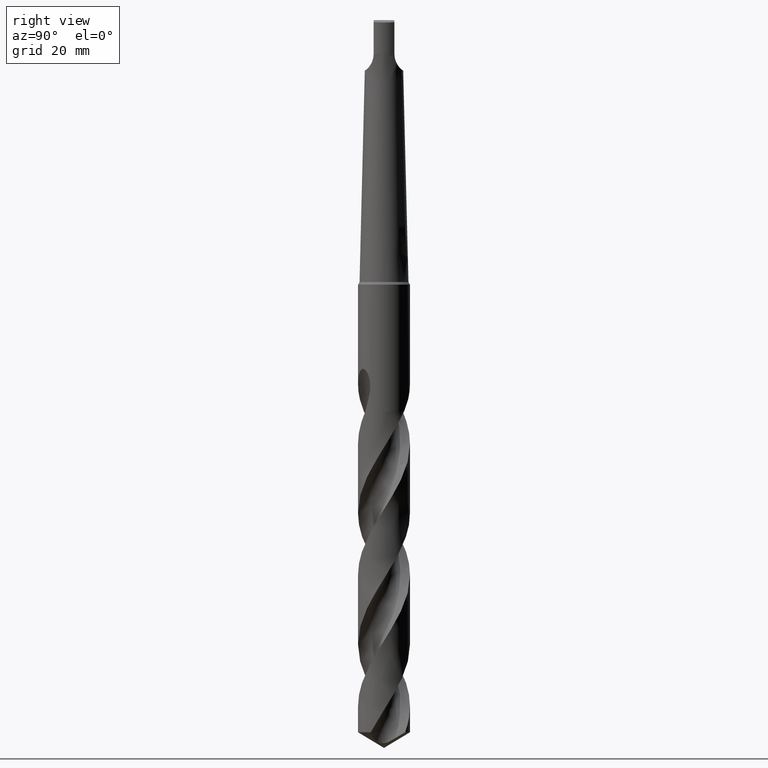
[diagram: clean part render]
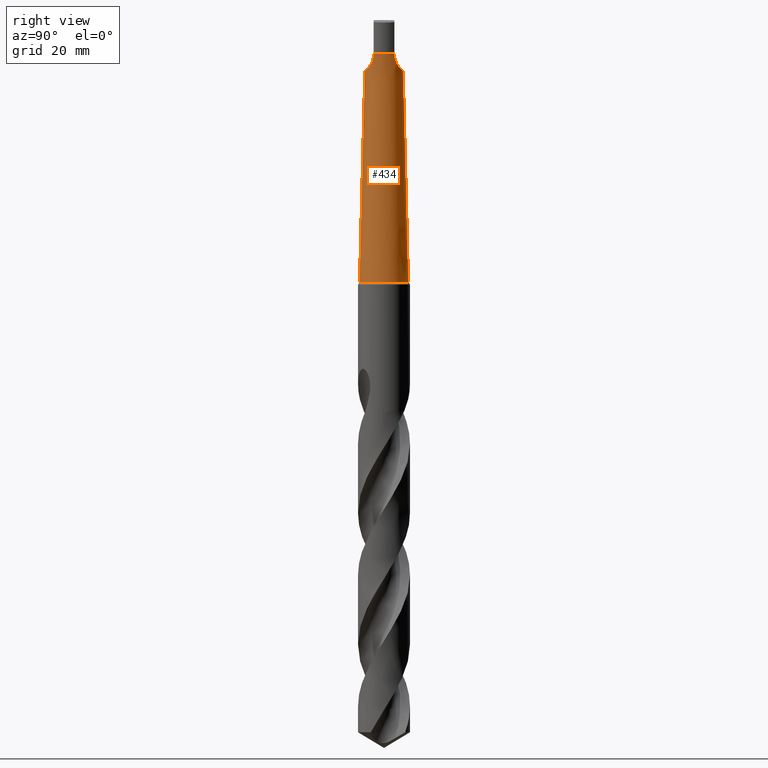
[diagram: same view with one face highlighted and labeled with its STEP entity id]
A machine part, right view. The second image highlights one B-rep face of the part: STEP entity #434.
In plain terms, the highlighted conical surface has half-angle 1.429 deg.
Its self-contained STEP definition (entity closure, byte-faithful):
#278=VERTEX_POINT('',#779);
#284=EDGE_CURVE('',#538,#594,#785,.T.);
#314=VERTEX_POINT('',#820);
#316=EDGE_CURVE('',#372,#608,#822,.T.);
#348=VERTEX_POINT('',#855);
#350=EDGE_CURVE('',#314,#348,#857,.T.);
#372=VERTEX_POINT('',#884);
#382=EDGE_CURVE('',#446,#746,#896,.T.);
#396=EDGE_CURVE('',#594,#458,#910,.T.);
#434=ADVANCED_FACE('',(#952,#953),#954,.T.);
#446=VERTEX_POINT('',#967);
#450=EDGE_CURVE('',#728,#446,#971,.T.);
#458=VERTEX_POINT('',#979);
#534=VERTEX_POINT('',#1064);
#538=VERTEX_POINT('',#1068);
#542=EDGE_CURVE('',#534,#314,#1072,.T.);
#566=EDGE_CURVE('',#348,#278,#1099,.T.);
#584=EDGE_CURVE('',#728,#278,#1118,.T.);
#594=VERTEX_POINT('',#1128);
#608=VERTEX_POINT('',#1143);
#626=EDGE_CURVE('',#534,#646,#1162,.T.);
#630=EDGE_CURVE('',#646,#372,#1167,.T.);
#646=VERTEX_POINT('',#1185);
#648=EDGE_CURVE('',#746,#608,#1187,.T.);
#726=EDGE_CURVE('',#458,#538,#1271,.T.);
#728=VERTEX_POINT('',#1273);
#746=VERTEX_POINT('',#1293);
#779=CARTESIAN_POINT('',(-7.30722611325813E-016,5.967,2.6331089351285));
#785=B_SPLINE_CURVE_WITH_KNOTS('',3,(#1475,#1476,#1477,#1478,#1479,#1480,#1481,#1482,#1483,#1484),.UNSPECIFIED.,.F.,.F.,(4,2,2,2,4),(3.10386765281075,3.41395529397561,3.72404293514048,4.03446955482045,4.34489617450043),.UNSPECIFIED.);
#820=CARTESIAN_POINT('',(0.29010312703583,5.97575209188588,2.00016710097719));
#822=LINE('',#2672,#2673);
#855=CARTESIAN_POINT('',(0.509929320479536,5.94517124127769,2.63310893512858));
#857=ELLIPSE('',#2732,18.3939231268992,6.01917473989601);
#884=CARTESIAN_POINT('',(7.49459088539295E-016,-6.12,-3.5));
#896=CIRCLE('',#2920,4.69804580152672);
#910=CIRCLE('',#2939,5.967);
#952=FACE_BOUND('',#3145,.T.);
#953=FACE_OUTER_BOUND('',#3146,.T.);
#954=CONICAL_SURFACE('',#3147,5.303,0.0249413918092599);
#967=CARTESIAN_POINT('',(3.91300835077602,2.59999999999999,53.5));
#971=B_SPLINE_CURVE_WITH_KNOTS('',3,(#3617,#3618,#3619,#3620,#3621,#3622,#3623,#3624,#3625,#3626,#3627,#3628,#3629,#3630,#3631,#3632,#3633,#3634,#3635,#3636,#3637,#3638,#3639,#3640,#3641,#3642,#3643,#3644,#3645,#3646,#3647,#3648,#3649,#3650,#3651,#3652,#3653,#3654,#3655,#3656,#3657,#3658,#3659,#3660,#3661,#3662),.UNSPECIFIED.,.F.,.F.,(4,2,2,2,2,2,2,2,2,2,2,2,2,2,2,2,2,2,2,2,2,2,4),(5.94745564972428,6.52836466216317,7.11627150966079,7.7041783571584,8.29208520465601,8.87999205215362,9.54139770725337,10.2028033623531,10.9539417241705,11.705080085988,12.4562184478054,13.2073568096228,13.9584951714402,14.7096335332576,15.460771895075,16.2119102568924,16.8733159119922,17.5347215670919,18.1226284145895,18.7105352620872,19.2984421095848,19.8863489570824,20.4672579695213),.UNSPECIFIED.);
#979=CARTESIAN_POINT('',(0.873560781758957,5.90270959480243,2.6331089351285));
#1064=CARTESIAN_POINT('',(-6.60045995059092E-016,5.98356786928868,1.96897463989665));
#1068=CARTESIAN_POINT('',(0.873560781758956,5.91259105037835,2.2412648208469));
#1072=B_SPLINE_CURVE_WITH_KNOTS('',3,(#4320,#4321,#4322,#4323,#4324,#4325,#4326,#4327,#4328,#4329,#4330,#4331,#4332,#4333,#4334,#4335),.UNSPECIFIED.,.F.,.F.,(4,2,2,2,2,2,2,4),(0.931799841544667,1.24239978872622,1.55272298523245,1.86304618173869,2.17336937824492,2.48369257475115,2.79378024306547,3.1038679113798),.UNSPECIFIED.);
#1099=CIRCLE('',#4391,5.967);
#1118=LINE('',#4495,#4496);
#1128=CARTESIAN_POINT('',(1.28415614419166,5.82718044999625,2.63310893859838));
#1143=CARTESIAN_POINT('',(3.0786963446816E-016,-4.80140978760588,49.3565844013553));
#1162=LINE('',#4866,#4867);
#1167=CIRCLE('',#4873,6.12);
#1185=CARTESIAN_POINT('',(0.0,6.12,-3.5));
#1187=B_SPLINE_CURVE_WITH_KNOTS('',3,(#5203,#5204,#5205,#5206,#5207,#5208,#5209,#5210,#5211,#5212,#5213,#5214,#5215,#5216,#5217,#5218,#5219,#5220,#5221,#5222,#5223,#5224,#5225,#5226,#5227,#5228,#5229,#5230,#5231,#5232,#5233,#5234,#5235,#5236,#5237,#5238,#5239,#5240,#5241,#5242,#5243,#5244,#5245,#5246,#5247,#5248),.UNSPECIFIED.,.F.,.F.,(4,2,2,2,2,2,2,2,2,2,2,2,2,2,2,2,2,2,2,2,2,2,4),(5.94745564972427,6.52836466216316,7.11627150966077,7.70417835715838,8.29208520465599,8.8799920521536,9.54139770725336,10.2028033623531,10.9539417241705,11.7050800859879,12.4562184478053,13.2073568096228,13.9584951714402,14.7096335332576,15.460771895075,16.2119102568924,16.8733159119922,17.5347215670919,18.1226284145895,18.7105352620871,19.2984421095847,19.8863489570824,20.4672579695212),.UNSPECIFIED.);
#1271=B_SPLINE_CURVE_WITH_KNOTS('',2,(#6867,#6868,#6869),.UNSPECIFIED.,.F.,.F.,(3,3),(0.0,1.43929949839651),.UNSPECIFIED.);
#1273=CARTESIAN_POINT('',(-3.0786963446817E-016,4.80140978760588,49.3565844013553));
#1293=CARTESIAN_POINT('',(3.91300835077601,-2.6,53.5));
#1475=CARTESIAN_POINT('',(0.599035610393367,5.95036129736933,2.09442229443066));
#1476=CARTESIAN_POINT('',(0.699636541946275,5.93918066650783,2.13641702515564));
#1477=CARTESIAN_POINT('',(0.795891492854324,5.92555605840773,2.18860984599436));
#1478=CARTESIAN_POINT('',(0.973607357313151,5.89591946935038,2.30893619308564));
#1479=CARTESIAN_POINT('',(1.05506678372596,5.87993320483155,2.37707824823881));
#1480=CARTESIAN_POINT('',(1.19915301524735,5.84855631467413,2.52211839048376));
#1481=CARTESIAN_POINT('',(1.2667658222859,5.83205246187239,2.60406264106873));
#1482=CARTESIAN_POINT('',(1.38589282907873,5.80031926621653,2.78256523663861));
#1483=CARTESIAN_POINT('',(1.43741686343211,5.78511815871833,2.87912203659073));
#1484=CARTESIAN_POINT('',(1.47872651475453,5.77193830695091,2.97995365964416));
#2672=CARTESIAN_POINT('',(6.49408749432007E-016,-5.303,29.25));
#2673=VECTOR('',#6994,1.0);
#2732=AXIS2_PLACEMENT_3D('',#7014,#7015,#7016);
#2920=AXIS2_PLACEMENT_3D('',#7080,#7081,#7082);
#2939=AXIS2_PLACEMENT_3D('',#7090,#7091,#7092);
#3145=EDGE_LOOP('',(#7138,#7139,#7140));
#3146=EDGE_LOOP('',(#7141,#7142,#7143,#7144,#7145,#7146,#7147,#7148,#7149,#7150));
#3147=AXIS2_PLACEMENT_3D('',#7151,#7152,#7153);
#3617=CARTESIAN_POINT('',(-3.87827031673624,2.62807838910429,54.0291460054732));
#3618=CARTESIAN_POINT('',(-3.8990250839821,2.6064766602198,53.8261734788075));
#3619=CARTESIAN_POINT('',(-3.91073636206028,2.59780425326199,53.624565494286));
#3620=CARTESIAN_POINT('',(-3.918829727423,2.60318047324103,53.2350813828284));
#3621=CARTESIAN_POINT('',(-3.91536598752433,2.61773011864031,53.0310817854921));
#3622=CARTESIAN_POINT('',(-3.88987427119856,2.67358080106456,52.6206301480916));
#3623=CARTESIAN_POINT('',(-3.86784007189936,2.71488498915771,52.4141789233081));
#3624=CARTESIAN_POINT('',(-3.80284519670475,2.82207835201599,52.0117731885987));
#3625=CARTESIAN_POINT('',(-3.75979411461954,2.88801535127764,51.815614556938));
#3626=CARTESIAN_POINT('',(-3.65212091678783,3.03751004563921,51.4448506007634));
#3627=CARTESIAN_POINT('',(-3.58741174648811,3.12102790522112,51.2702545019472));
#3628=CARTESIAN_POINT('',(-3.43056560883212,3.30536613338167,50.931375616697));
#3629=CARTESIAN_POINT('',(-3.3241169205683,3.42080271026072,50.7475187920624));
#3630=CARTESIAN_POINT('',(-3.07213351498948,3.6596052235429,50.415339383503));
#3631=CARTESIAN_POINT('',(-2.92626083031944,3.78244908748272,50.2668981593617));
#3632=CARTESIAN_POINT('',(-2.60974982033587,4.01629731856031,50.0083761490892));
#3633=CARTESIAN_POINT('',(-2.41737526686592,4.14010626945426,49.8872222764376));
#3634=CARTESIAN_POINT('',(-1.99363639191269,4.36556520400834,49.6840520199987));
#3635=CARTESIAN_POINT('',(-1.7623029251151,4.4670852397017,49.6018271562151));
#3636=CARTESIAN_POINT('',(-1.27691343049786,4.63255351941054,49.474436810041));
#3637=CARTESIAN_POINT('',(-1.02240649087372,4.696650309994,49.4289792037646));
#3638=CARTESIAN_POINT('',(-0.50913808581899,4.78108012033082,49.3700677435731));
#3639=CARTESIAN_POINT('',(-0.250379453939138,4.80140978760588,49.3565844013553));
#3640=CARTESIAN_POINT('',(0.250379453939138,4.80140978760588,49.3565844013553));
#3641=CARTESIAN_POINT('',(0.50913808581899,4.78108012033082,49.3700677435731));
#3642=CARTESIAN_POINT('',(1.02240649087372,4.696650309994,49.4289792037646));
#3643=CARTESIAN_POINT('',(1.27691343049786,4.63255351941054,49.474436810041));
#3644=CARTESIAN_POINT('',(1.7623029251151,4.4670852397017,49.6018271562151));
#3645=CARTESIAN_POINT('',(1.99363639191269,4.36556520400834,49.6840520199987));
#3646=CARTESIAN_POINT('',(2.41737526686592,4.14010626945426,49.8872222764376));
#3647=CARTESIAN_POINT('',(2.60974982033587,4.01629731856031,50.0083761490892));
#3648=CARTESIAN_POINT('',(2.92626083031944,3.78244908748272,50.2668981593617));
#3649=CARTESIAN_POINT('',(3.07213351498948,3.6596052235429,50.415339383503));
#3650=CARTESIAN_POINT('',(3.3241169205683,3.42080271026072,50.7475187920624));
#3651=CARTESIAN_POINT('',(3.43056560883212,3.30536613338167,50.931375616697));
#3652=CARTESIAN_POINT('',(3.58741174648811,3.12102790522112,51.2702545019472));
#3653=CARTESIAN_POINT('',(3.65212091678783,3.03751004563921,51.4448506007634));
#3654=CARTESIAN_POINT('',(3.75979411461954,2.88801535127764,51.815614556938));
#3655=CARTESIAN_POINT('',(3.80284519670475,2.82207835201599,52.0117731885987));
#3656=CARTESIAN_POINT('',(3.86784007189936,2.71488498915771,52.4141789233081));
#3657=CARTESIAN_POINT('',(3.88987427119856,2.67358080106456,52.6206301480916));
#3658=CARTESIAN_POINT('',(3.91536598752433,2.61773011864031,53.0310817854921));
#3659=CARTESIAN_POINT('',(3.918829727423,2.60318047324103,53.2350813828284));
#3660=CARTESIAN_POINT('',(3.91073636206028,2.59780425326199,53.624565494286));
#3661=CARTESIAN_POINT('',(3.8990250839821,2.6064766602198,53.8261734788075));
#3662=CARTESIAN_POINT('',(3.87827031673624,2.62807838910429,54.0291460054732));
#4320=CARTESIAN_POINT('',(-1.38319957137775,5.80291837008815,2.69353172447235));
#4321=CARTESIAN_POINT('',(-1.32366647072171,5.81939736453985,2.60429486230366));
#4322=CARTESIAN_POINT('',(-1.25609517881084,5.83658663248723,2.52237153680972));
#4323=CARTESIAN_POINT('',(-1.11210595310727,5.86940661765935,2.37735999954518));
#4324=CARTESIAN_POINT('',(-1.03069448304897,5.88620255974902,2.30922042397839));
#4325=CARTESIAN_POINT('',(-0.8530682284684,5.91759002359797,2.18887648802474));
#4326=CARTESIAN_POINT('',(-0.756854774866493,5.93215589063388,2.13666347361318));
#4327=CARTESIAN_POINT('',(-0.555701876337262,5.95647356044987,2.0526130089964));
#4328=CARTESIAN_POINT('',(-0.450589763170328,5.96622782901681,2.0207083121043));
#4329=CARTESIAN_POINT('',(-0.238738150723508,5.97950077255894,1.97876618673193));
#4330=CARTESIAN_POINT('',(-0.131995955709708,5.98301191868943,1.96873999309455));
#4331=CARTESIAN_POINT('',(0.0748053064166869,5.98399948461521,1.96871537231994));
#4332=CARTESIAN_POINT('',(0.18150086160882,5.98151198693977,1.97870136866006));
#4333=CARTESIAN_POINT('',(0.39331440778204,5.97027942044697,2.02056267132559));
#4334=CARTESIAN_POINT('',(0.498434944408601,5.96154191713562,2.05242712592192));
#4335=CARTESIAN_POINT('',(0.599035884276313,5.95036128068141,2.09442186031345));
#4391=AXIS2_PLACEMENT_3D('',#7294,#7295,#7296);
#4495=CARTESIAN_POINT('',(-6.49408749432007E-016,5.303,29.25));
#4496=VECTOR('',#7327,1.0);
#4866=CARTESIAN_POINT('',(-6.49408749432007E-016,5.303,29.25));
#4867=VECTOR('',#7352,1.0);
#4873=AXIS2_PLACEMENT_3D('',#7361,#7362,#7363);
#5203=CARTESIAN_POINT('',(3.87827031673624,-2.62807838910429,54.0291460054732));
#5204=CARTESIAN_POINT('',(3.89902508398209,-2.6064766602198,53.8261734788075));
#5205=CARTESIAN_POINT('',(3.91073636206027,-2.597804253262,53.624565494286));
#5206=CARTESIAN_POINT('',(3.91882972742299,-2.60318047324104,53.2350813828284));
#5207=CARTESIAN_POINT('',(3.91536598752432,-2.61773011864032,53.0310817854921));
#5208=CARTESIAN_POINT('',(3.88987427119855,-2.67358080106457,52.6206301480916));
#5209=CARTESIAN_POINT('',(3.86784007189936,-2.71488498915772,52.4141789233081));
#5210=CARTESIAN_POINT('',(3.80284519670475,-2.82207835201599,52.0117731885987));
#5211=CARTESIAN_POINT('',(3.75979411461953,-2.88801535127764,51.815614556938));
#5212=CARTESIAN_POINT('',(3.65212091678782,-3.03751004563922,51.4448506007634));
#5213=CARTESIAN_POINT('',(3.5874117464881,-3.12102790522112,51.2702545019472));
#5214=CARTESIAN_POINT('',(3.43056560883212,-3.30536613338167,50.931375616697));
#5215=CARTESIAN_POINT('',(3.32411692056829,-3.42080271026073,50.7475187920624));
#5216=CARTESIAN_POINT('',(3.07213351498948,-3.6596052235429,50.415339383503));
#5217=CARTESIAN_POINT('',(2.92626083031944,-3.78244908748272,50.2668981593617));
#5218=CARTESIAN_POINT('',(2.60974982033587,-4.01629731856031,50.0083761490892));
#5219=CARTESIAN_POINT('',(2.41737526686592,-4.14010626945426,49.8872222764376));
#5220=CARTESIAN_POINT('',(1.99363639191269,-4.36556520400834,49.6840520199988));
#5221=CARTESIAN_POINT('',(1.7623029251151,-4.4670852397017,49.6018271562151));
#5222=CARTESIAN_POINT('',(1.27691343049786,-4.63255351941054,49.474436810041));
#5223=CARTESIAN_POINT('',(1.02240649087372,-4.696650309994,49.4289792037647));
#5224=CARTESIAN_POINT('',(0.509138085818991,-4.78108012033082,49.3700677435731));
#5225=CARTESIAN_POINT('',(0.250379453939138,-4.80140978760588,49.3565844013553));
#5226=CARTESIAN_POINT('',(-0.250379453939137,-4.80140978760588,49.3565844013553));
#5227=CARTESIAN_POINT('',(-0.50913808581899,-4.78108012033082,49.3700677435731));
#5228=CARTESIAN_POINT('',(-1.02240649087372,-4.696650309994,49.4289792037647));
#5229=CARTESIAN_POINT('',(-1.27691343049786,-4.63255351941054,49.474436810041));
#5230=CARTESIAN_POINT('',(-1.7623029251151,-4.4670852397017,49.6018271562151));
#5231=CARTESIAN_POINT('',(-1.99363639191269,-4.36556520400834,49.6840520199988));
#5232=CARTESIAN_POINT('',(-2.41737526686592,-4.14010626945426,49.8872222764376));
#5233=CARTESIAN_POINT('',(-2.60974982033587,-4.01629731856031,50.0083761490892));
#5234=CARTESIAN_POINT('',(-2.92626083031944,-3.78244908748272,50.2668981593617));
#5235=CARTESIAN_POINT('',(-3.07213351498948,-3.6596052235429,50.415339383503));
#5236=CARTESIAN_POINT('',(-3.32411692056829,-3.42080271026073,50.7475187920624));
#5237=CARTESIAN_POINT('',(-3.43056560883212,-3.30536613338167,50.931375616697));
#5238=CARTESIAN_POINT('',(-3.5874117464881,-3.12102790522112,51.2702545019472));
#5239=CARTESIAN_POINT('',(-3.65212091678782,-3.03751004563921,51.4448506007634));
#5240=CARTESIAN_POINT('',(-3.75979411461954,-2.88801535127764,51.815614556938));
#5241=CARTESIAN_POINT('',(-3.80284519670475,-2.82207835201599,52.0117731885987));
#5242=CARTESIAN_POINT('',(-3.86784007189936,-2.71488498915771,52.4141789233081));
#5243=CARTESIAN_POINT('',(-3.88987427119855,-2.67358080106457,52.6206301480916));
#5244=CARTESIAN_POINT('',(-3.91536598752432,-2.61773011864032,53.0310817854921));
#5245=CARTESIAN_POINT('',(-3.91882972742299,-2.60318047324104,53.2350813828284));
#5246=CARTESIAN_POINT('',(-3.91073636206027,-2.597804253262,53.624565494286));
#5247=CARTESIAN_POINT('',(-3.89902508398209,-2.6064766602198,53.8261734788075));
#5248=CARTESIAN_POINT('',(-3.87827031673624,-2.62807838910429,54.0291460054732));
#6867=CARTESIAN_POINT('',(0.873560781758957,5.87630484256303,3.68010684039088));
#6868=CARTESIAN_POINT('',(0.873560781758957,5.89439330220513,2.96290020760979));
#6869=CARTESIAN_POINT('',(0.873560781758957,5.91259105037835,2.2412648208469));
#6994=DIRECTION('',(-3.05402202784403E-018,0.0249388059951794,0.999688979610926));
#7014=CARTESIAN_POINT('',(-0.433466252810489,0.0,-0.0831939545968723));
#7015=DIRECTION('',(0.944648353914092,8.90633708488043E-034,-0.328084573619969));
#7016=DIRECTION('',(-0.328084573619969,-7.80588513353131E-018,-0.944648353914092));
#7080=CARTESIAN_POINT('',(0.0,0.0,53.5));
#7081=DIRECTION('',(0.0,0.0,-1.0));
#7082=DIRECTION('',(0.0,1.0,0.0));
#7090=CARTESIAN_POINT('',(0.0,0.0,2.6331089351285));
#7091=DIRECTION('',(0.0,-0.0,1.0));
#7092=DIRECTION('',(1.0,0.0,0.0));
#7138=ORIENTED_EDGE('',*,*,#396,.T.);
#7139=ORIENTED_EDGE('',*,*,#726,.T.);
#7140=ORIENTED_EDGE('',*,*,#284,.T.);
#7141=ORIENTED_EDGE('',*,*,#584,.F.);
#7142=ORIENTED_EDGE('',*,*,#450,.T.);
#7143=ORIENTED_EDGE('',*,*,#382,.T.);
#7144=ORIENTED_EDGE('',*,*,#648,.T.);
#7145=ORIENTED_EDGE('',*,*,#316,.F.);
#7146=ORIENTED_EDGE('',*,*,#630,.F.);
#7147=ORIENTED_EDGE('',*,*,#626,.F.);
#7148=ORIENTED_EDGE('',*,*,#542,.T.);
#7149=ORIENTED_EDGE('',*,*,#350,.T.);
#7150=ORIENTED_EDGE('',*,*,#566,.T.);
#7151=CARTESIAN_POINT('',(0.0,0.0,29.25));
#7152=DIRECTION('',(0.0,-0.0,-1.0));
#7153=DIRECTION('',(0.0,1.0,0.0));
#7294=CARTESIAN_POINT('',(0.0,0.0,2.6331089351285));
#7295=DIRECTION('',(0.0,-0.0,1.0));
#7296=DIRECTION('',(1.0,0.0,0.0));
#7327=DIRECTION('',(-3.05402202784403E-018,0.0249388059951794,-0.999688979610926));
#7352=DIRECTION('',(-3.05402202784403E-018,0.0249388059951794,-0.999688979610926));
#7361=CARTESIAN_POINT('',(0.0,0.0,-3.5));
#7362=DIRECTION('',(0.0,0.0,-1.0));
#7363=DIRECTION('',(0.0,1.0,0.0));